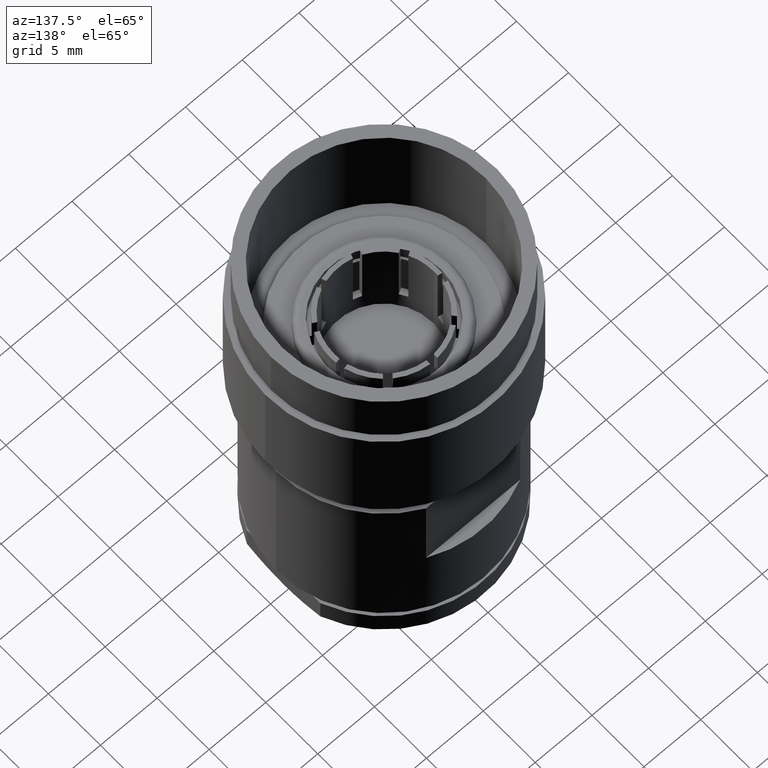
[diagram: clean part render]
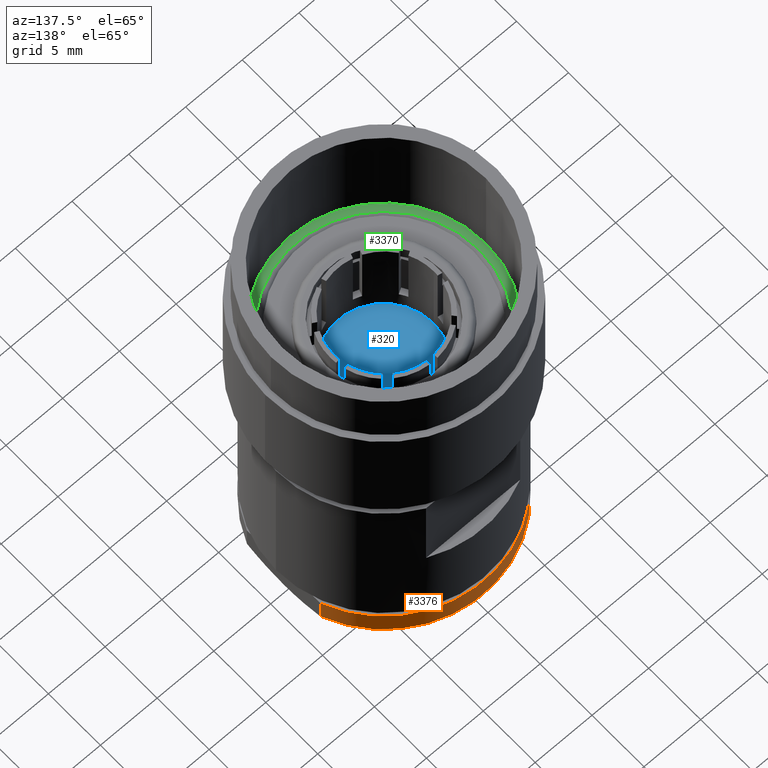
[diagram: same view with three faces highlighted in distinct colors, each labeled with its STEP entity id]
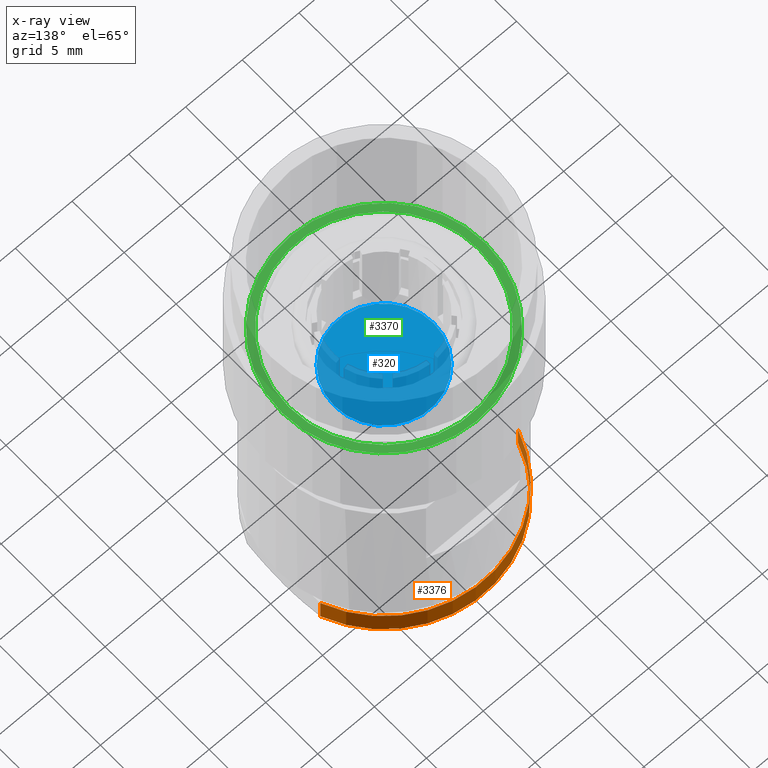
[diagram: x-ray of the same camera — body ghosted, the three highlighted faces saturated]
A machine part, auxiliary view with three faces highlighted in distinct colors.
The next image is the same camera in x-ray (body ghosted, the three faces saturated) — at least one of them is partly hidden behind the body in this view.
Their STEP definitions:

[orange] entity #3376 — the highlighted cylindrical surface (partial cylindrical patch) has radius 9.525 mm, axis along (-0, -0, -1).
#37 = VERTEX_POINT ( 'NONE', #2670 ) ;
#158 = VERTEX_POINT ( 'NONE', #2549 ) ;
#159 = VERTEX_POINT ( 'NONE', #2548 ) ;
#190 = VERTEX_POINT ( 'NONE', #2517 ) ;
#233 = ORIENTED_EDGE ( 'NONE', *, *, #1037, .T. ) ;
#237 = ORIENTED_EDGE ( 'NONE', *, *, #1106, .T. ) ;
#238 = ORIENTED_EDGE ( 'NONE', *, *, #1107, .F. ) ;
#240 = ORIENTED_EDGE ( 'NONE', *, *, #1101, .F. ) ;
#590 = VECTOR ( 'NONE', #3060, 39.37007874015748100 ) ;
#592 = VECTOR ( 'NONE', #3012, 39.37007874015748100 ) ;
#593 = LINE ( 'NONE', #2734, #590 ) ;
#594 = LINE ( 'NONE', #3015, #592 ) ;
#604 = CIRCLE ( 'NONE', #815, 0.3750000000000000600 ) ;
#700 = CYLINDRICAL_SURFACE ( 'NONE', #765, 0.3750000000000000600 ) ;
#707 = FACE_OUTER_BOUND ( 'NONE', #1719, .T. ) ;
#765 = AXIS2_PLACEMENT_3D ( 'NONE', #3064, #3080, #3095 ) ;
#815 = AXIS2_PLACEMENT_3D ( 'NONE', #3009, #3010, #3011 ) ;
#843 = AXIS2_PLACEMENT_3D ( 'NONE', #2801, #2802, #2803 ) ;
#1037 = EDGE_CURVE ( 'NONE', #159, #158, #1847, .T. ) ;
#1101 = EDGE_CURVE ( 'NONE', #37, #190, #604, .T. ) ;
#1106 = EDGE_CURVE ( 'NONE', #37, #159, #594, .T. ) ;
#1107 = EDGE_CURVE ( 'NONE', #190, #158, #593, .T. ) ;
#1719 = EDGE_LOOP ( 'NONE', ( #237, #233, #238, #240 ) ) ;
#1847 = CIRCLE ( 'NONE', #843, 0.3750000000000000600 ) ;
#2517 = CARTESIAN_POINT ( 'NONE',  ( -0.3554274735830987300, 0.1195671820456416900, 0.1300000000000000000 ) ) ;
#2548 = CARTESIAN_POINT ( 'NONE',  ( 0.3482228626320788600, 0.1391611940891580000, 0.05000000000000004400 ) ) ;
#2549 = CARTESIAN_POINT ( 'NONE',  ( -0.3554274735830987300, 0.1195671820456418700, 0.05000000000000007900 ) ) ;
#2670 = CARTESIAN_POINT ( 'NONE',  ( 0.3482228626320788600, 0.1391611940891580000, 0.1300000000000000000 ) ) ;
#2734 = CARTESIAN_POINT ( 'NONE',  ( -0.3554274735830987300, 0.1195671820456416900, 0.1300000000000000000 ) ) ;
#2801 = CARTESIAN_POINT ( 'NONE',  ( 0.0000000000000000000, 0.0000000000000000000, 0.05000000000000007900 ) ) ;
#2802 = DIRECTION ( 'NONE',  ( -0.0000000000000000000, -0.0000000000000000000, 1.000000000000000000 ) ) ;
#2803 = DIRECTION ( 'NONE',  ( 1.000000000000000000, 0.0000000000000000000, 0.0000000000000000000 ) ) ;
#3009 = CARTESIAN_POINT ( 'NONE',  ( 0.0000000000000000000, 0.0000000000000000000, 0.1300000000000000000 ) ) ;
#3010 = DIRECTION ( 'NONE',  ( 0.0000000000000000000, 0.0000000000000000000, 1.000000000000000000 ) ) ;
#3011 = DIRECTION ( 'NONE',  ( 1.000000000000000000, 0.0000000000000000000, 0.0000000000000000000 ) ) ;
#3012 = DIRECTION ( 'NONE',  ( -0.0000000000000000000, -0.0000000000000000000, -1.000000000000000000 ) ) ;
#3015 = CARTESIAN_POINT ( 'NONE',  ( 0.3482228626320788600, 0.1391611940891580000, 0.1300000000000000000 ) ) ;
#3060 = DIRECTION ( 'NONE',  ( -0.0000000000000000000, -0.0000000000000000000, -1.000000000000000000 ) ) ;
#3064 = CARTESIAN_POINT ( 'NONE',  ( 0.0000000000000000000, 0.0000000000000000000, 0.1300000000000000000 ) ) ;
#3080 = DIRECTION ( 'NONE',  ( -0.0000000000000000000, -0.0000000000000000000, -1.000000000000000000 ) ) ;
#3095 = DIRECTION ( 'NONE',  ( -1.000000000000000000, 0.0000000000000000000, 0.0000000000000000000 ) ) ;
#3376 = ADVANCED_FACE ( 'NONE', ( #707 ), #700, .T. ) ;

[blue] entity #320 — the highlighted planar face has unit normal (0, -0, 1).
#57 = VERTEX_POINT ( 'NONE', #2650 ) ;
#149 = VERTEX_POINT ( 'NONE', #2558 ) ;
#320 = ADVANCED_FACE ( 'NONE', ( #2074 ), #2374, .T. ) ;
#555 = CIRCLE ( 'NONE', #798, 0.1727697198102878000 ) ;
#798 = AXIS2_PLACEMENT_3D ( 'NONE', #2683, #3157, #2728 ) ;
#870 = AXIS2_PLACEMENT_3D ( 'NONE', #2157, #2156, #2155 ) ;
#928 = AXIS2_PLACEMENT_3D ( 'NONE', #2379, #2371, #2370 ) ;
#984 = EDGE_CURVE ( 'NONE', #149, #57, #1973, .T. ) ;
#1135 = EDGE_CURVE ( 'NONE', #57, #149, #555, .T. ) ;
#1637 = EDGE_LOOP ( 'NONE', ( #1760, #1762 ) ) ;
#1760 = ORIENTED_EDGE ( 'NONE', *, *, #1135, .T. ) ;
#1762 = ORIENTED_EDGE ( 'NONE', *, *, #984, .T. ) ;
#1973 = CIRCLE ( 'NONE', #870, 0.1727697198102878000 ) ;
#2074 = FACE_OUTER_BOUND ( 'NONE', #1637, .T. ) ;
#2155 = DIRECTION ( 'NONE',  ( 1.000000000000000000, 0.0000000000000000000, 0.0000000000000000000 ) ) ;
#2156 = DIRECTION ( 'NONE',  ( -0.0000000000000000000, -0.0000000000000000000, 1.000000000000000000 ) ) ;
#2157 = CARTESIAN_POINT ( 'NONE',  ( 0.0000000000000000000, 0.0000000000000000000, 0.8497191322956145800 ) ) ;
#2370 = DIRECTION ( 'NONE',  ( 1.000000000000000000, 0.0000000000000000000, 0.0000000000000000000 ) ) ;
#2371 = DIRECTION ( 'NONE',  ( 0.0000000000000000000, -0.0000000000000000000, 1.000000000000000000 ) ) ;
#2374 = PLANE ( 'NONE',  #928 ) ;
#2379 = CARTESIAN_POINT ( 'NONE',  ( -0.1727697198102878000, 0.0000000000000000000, 0.8497191322956145800 ) ) ;
#2558 = CARTESIAN_POINT ( 'NONE',  ( -0.1727697198102878000, 2.115818843552540200E-017, 0.8497191322956145800 ) ) ;
#2650 = CARTESIAN_POINT ( 'NONE',  ( 0.1727697198102878000, 0.0000000000000000000, 0.8497191322956145800 ) ) ;
#2683 = CARTESIAN_POINT ( 'NONE',  ( 0.0000000000000000000, 0.0000000000000000000, 0.8497191322956145800 ) ) ;
#2728 = DIRECTION ( 'NONE',  ( 1.000000000000000000, 0.0000000000000000000, 0.0000000000000000000 ) ) ;
#3157 = DIRECTION ( 'NONE',  ( -0.0000000000000000000, -0.0000000000000000000, 1.000000000000000000 ) ) ;

[green] entity #3370 — the highlighted planar face has unit normal (0, -0, 1).
#76 = VERTEX_POINT ( 'NONE', #2631 ) ;
#120 = VERTEX_POINT ( 'NONE', #2587 ) ;
#209 = VERTEX_POINT ( 'NONE', #2498 ) ;
#212 = VERTEX_POINT ( 'NONE', #2495 ) ;
#456 = CIRCLE ( 'NONE', #781, 0.3538051686328418400 ) ;
#457 = CIRCLE ( 'NONE', #782, 0.3298906290669745300 ) ;
#710 = FACE_BOUND ( 'NONE', #1649, .T. ) ;
#717 = FACE_OUTER_BOUND ( 'NONE', #1651, .T. ) ;
#771 = AXIS2_PLACEMENT_3D ( 'NONE', #3149, #3139, #3134 ) ;
#781 = AXIS2_PLACEMENT_3D ( 'NONE', #3281, #3284, #3280 ) ;
#782 = AXIS2_PLACEMENT_3D ( 'NONE', #3285, #3289, #3288 ) ;
#882 = AXIS2_PLACEMENT_3D ( 'NONE', #2208, #2207, #2206 ) ;
#887 = AXIS2_PLACEMENT_3D ( 'NONE', #2217, #2216, #2215 ) ;
#962 = EDGE_CURVE ( 'NONE', #209, #76, #2019, .T. ) ;
#965 = EDGE_CURVE ( 'NONE', #212, #120, #2028, .T. ) ;
#1192 = EDGE_CURVE ( 'NONE', #120, #212, #457, .T. ) ;
#1193 = EDGE_CURVE ( 'NONE', #76, #209, #456, .T. ) ;
#1623 = ORIENTED_EDGE ( 'NONE', *, *, #1193, .T. ) ;
#1649 = EDGE_LOOP ( 'NONE', ( #1674, #1677 ) ) ;
#1651 = EDGE_LOOP ( 'NONE', ( #1623, #1672 ) ) ;
#1672 = ORIENTED_EDGE ( 'NONE', *, *, #962, .T. ) ;
#1674 = ORIENTED_EDGE ( 'NONE', *, *, #965, .F. ) ;
#1677 = ORIENTED_EDGE ( 'NONE', *, *, #1192, .F. ) ;
#2019 = CIRCLE ( 'NONE', #887, 0.3538051686328418400 ) ;
#2028 = CIRCLE ( 'NONE', #882, 0.3298906290669745300 ) ;
#2206 = DIRECTION ( 'NONE',  ( 1.000000000000000000, 0.0000000000000000000, 0.0000000000000000000 ) ) ;
#2207 = DIRECTION ( 'NONE',  ( -0.0000000000000000000, -0.0000000000000000000, 1.000000000000000000 ) ) ;
#2208 = CARTESIAN_POINT ( 'NONE',  ( 0.0000000000000000000, 0.0000000000000000000, 1.070000000000000100 ) ) ;
#2215 = DIRECTION ( 'NONE',  ( 1.000000000000000000, 0.0000000000000000000, 0.0000000000000000000 ) ) ;
#2216 = DIRECTION ( 'NONE',  ( -0.0000000000000000000, -0.0000000000000000000, 1.000000000000000000 ) ) ;
#2217 = CARTESIAN_POINT ( 'NONE',  ( 0.0000000000000000000, 0.0000000000000000000, 1.070000000000000100 ) ) ;
#2495 = CARTESIAN_POINT ( 'NONE',  ( 0.3298906290669745300, 0.0000000000000000000, 1.070000000000000100 ) ) ;
#2498 = CARTESIAN_POINT ( 'NONE',  ( -0.3538051686328418400, 4.332863672879992600E-017, 1.070000000000000100 ) ) ;
#2587 = CARTESIAN_POINT ( 'NONE',  ( -0.3298906290669745300, 4.039995029555771800E-017, 1.070000000000000100 ) ) ;
#2631 = CARTESIAN_POINT ( 'NONE',  ( 0.3538051686328418400, 0.0000000000000000000, 1.070000000000000100 ) ) ;
#3134 = DIRECTION ( 'NONE',  ( 1.000000000000000000, 0.0000000000000000000, 0.0000000000000000000 ) ) ;
#3139 = DIRECTION ( 'NONE',  ( 0.0000000000000000000, -0.0000000000000000000, 1.000000000000000000 ) ) ;
#3144 = PLANE ( 'NONE',  #771 ) ;
#3149 = CARTESIAN_POINT ( 'NONE',  ( -0.3538051686328418400, 0.0000000000000000000, 1.070000000000000100 ) ) ;
#3280 = DIRECTION ( 'NONE',  ( 1.000000000000000000, 0.0000000000000000000, 0.0000000000000000000 ) ) ;
#3281 = CARTESIAN_POINT ( 'NONE',  ( 0.0000000000000000000, 0.0000000000000000000, 1.070000000000000100 ) ) ;
#3284 = DIRECTION ( 'NONE',  ( -0.0000000000000000000, -0.0000000000000000000, 1.000000000000000000 ) ) ;
#3285 = CARTESIAN_POINT ( 'NONE',  ( 0.0000000000000000000, 0.0000000000000000000, 1.070000000000000100 ) ) ;
#3288 = DIRECTION ( 'NONE',  ( 1.000000000000000000, 0.0000000000000000000, 0.0000000000000000000 ) ) ;
#3289 = DIRECTION ( 'NONE',  ( -0.0000000000000000000, -0.0000000000000000000, 1.000000000000000000 ) ) ;
#3370 = ADVANCED_FACE ( 'NONE', ( #717, #710 ), #3144, .T. ) ;